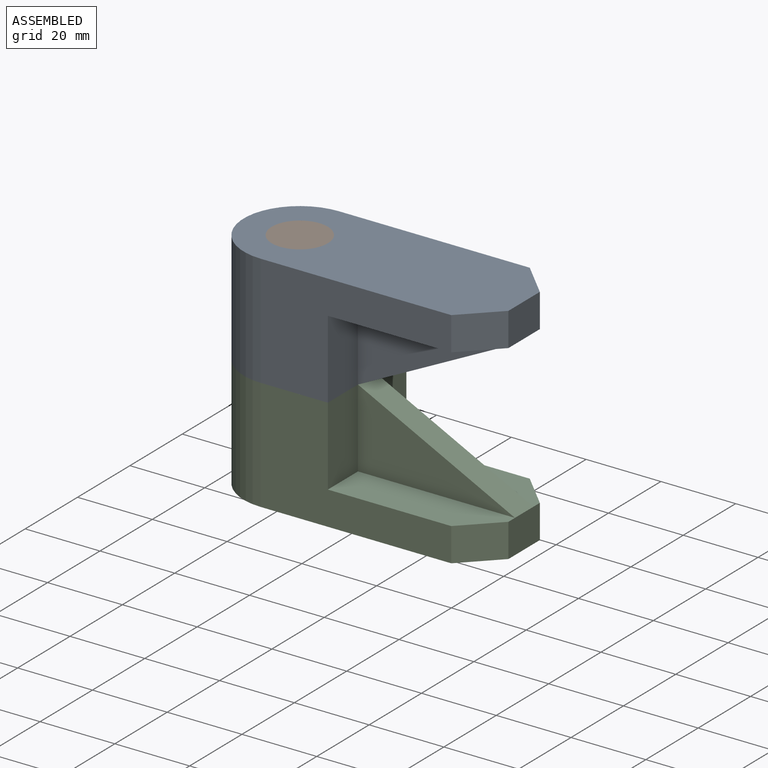
[diagram: assembled view]
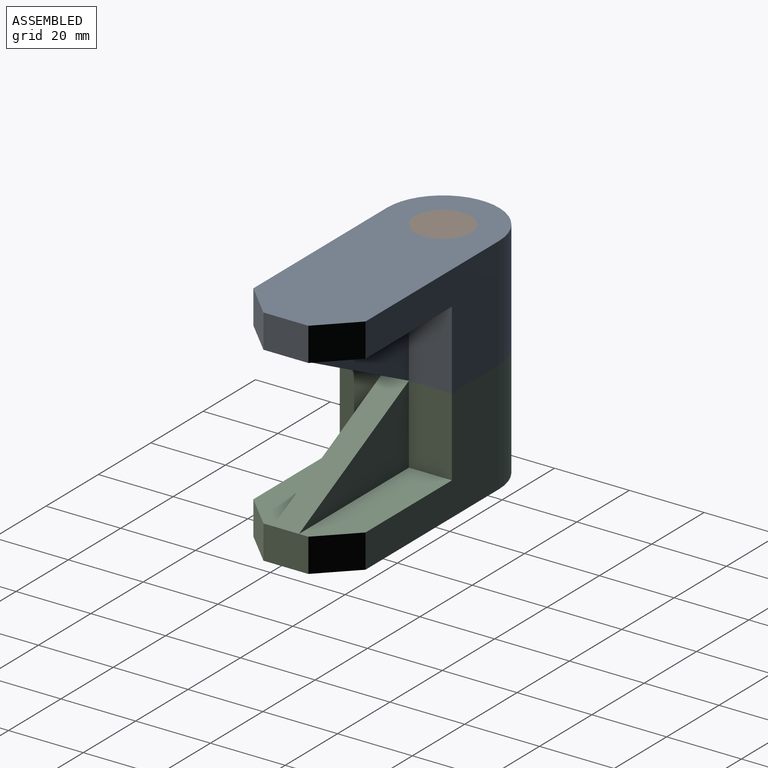
[diagram: assembled view, second angle]
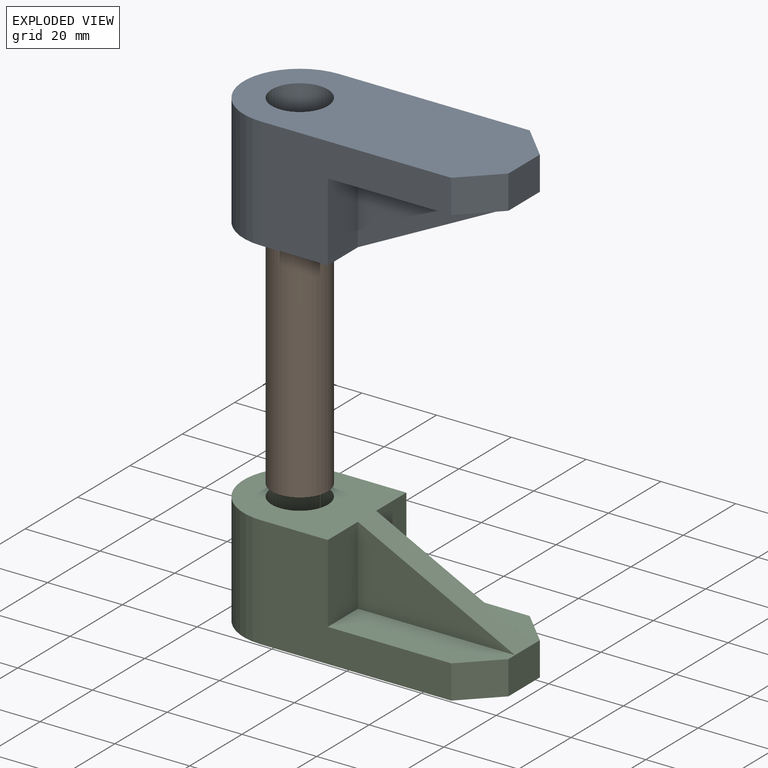
[diagram: exploded view]
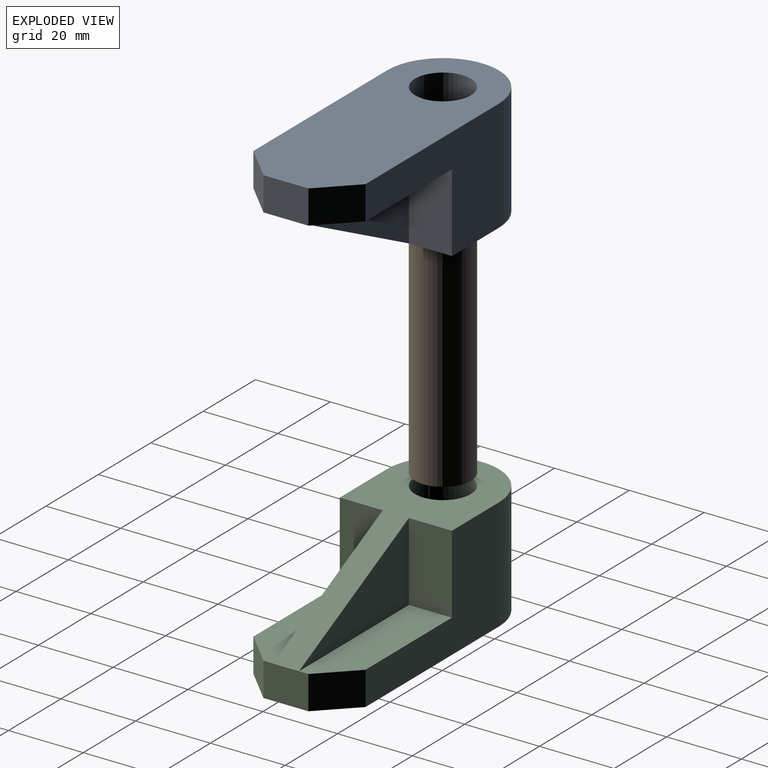
[diagram: exploded view, second angle]
ASSEMBLY  parts=3 mates=2
PART A: 16 faces, bbox 75x30x30 mm
  f0: cylinder r=15mm len=30mm, axis (0,0,-1), area 1413.7mm2, adj f1,f8,f9,f10
  f1: plane 51x30mm, normal (0,-1,0), area 837mm2, adj f0,f2,f9,f10,f13,f14
  f2: plane 21x11.5mm, normal (1,0,0), area 241.5mm2, adj f1,f3,f9,f13
  f3: plane 42x21mm, normal (0,-1,0), area 441mm2, adj f2,f13,f15
  f4: plane 12x9mm, normal (1,0,0), area 108mm2, adj f10,f11,f12,f13,f14,f15
  f5: plane 42x21mm, normal (0,1,0), area 441mm2, adj f6,f12,f15
  f6: plane 21x11.5mm, normal (1,0,0), area 241.5mm2, adj f5,f8,f9,f12
  f7: cylinder r=7.5mm len=30mm, axis (0,0,-1), area 1413.7mm2, adj f9,f10
  f8: plane 51x30mm, normal (0,1,0), area 837mm2, adj f0,f6,f9,f10,f11,f12
  f9: plane 33x30mm, normal (0,0,1), area 716.7mm2, adj f0,f1,f2,f6,f7,f8,f15
  f10: plane 75x30mm, normal (0,0,-1), area 1895.7mm2, adj f0,f1,f4,f7,f8,f11,f14
  f11: plane 9x9mm, normal (0.71,0.71,0), area 114.6mm2, adj f4,f8,f10,f12
  f12: plane 42x11.5mm, normal (0,0,1), area 442.5mm2, adj f4,f5,f6,f8,f11
  f13: plane 42x11.5mm, normal (0,0,1), area 442.5mm2, adj f1,f2,f3,f4,f14
  f14: plane 9x9mm, normal (0.71,-0.71,0), area 114.6mm2, adj f1,f4,f10,f13
  f15: plane 42x21mm, normal (0.45,0,0.89), area 328.7mm2, adj f3,f4,f5,f9
PART B: 3 faces, bbox 15x15x60 mm
  f0: cylinder r=7.5mm len=60mm, axis (0,0,-1), area 2827.4mm2, adj f1,f2
  f1: plane 15x15mm, normal (0,0,1), area 176.7mm2, adj f0
  f2: plane 15x15mm, normal (0,0,-1), area 176.7mm2, adj f0
PART C: same geometry as A
PLACE A rot(axis=(1,0,0),180deg) t=(2.1,7.66,39.67)mm
PLACE B t=(2.1,7.66,-20.33)mm
PLACE C t=(2.1,7.66,-20.33)mm
MATE pin_slot A.f0 <-> B.f0  axis (0,0,1) through (2.1,7.66,39.67)mm
MATE pin_slot B.f0 <-> C.f7  axis (0,0,-1) through (2.1,7.66,-20.33)mm
